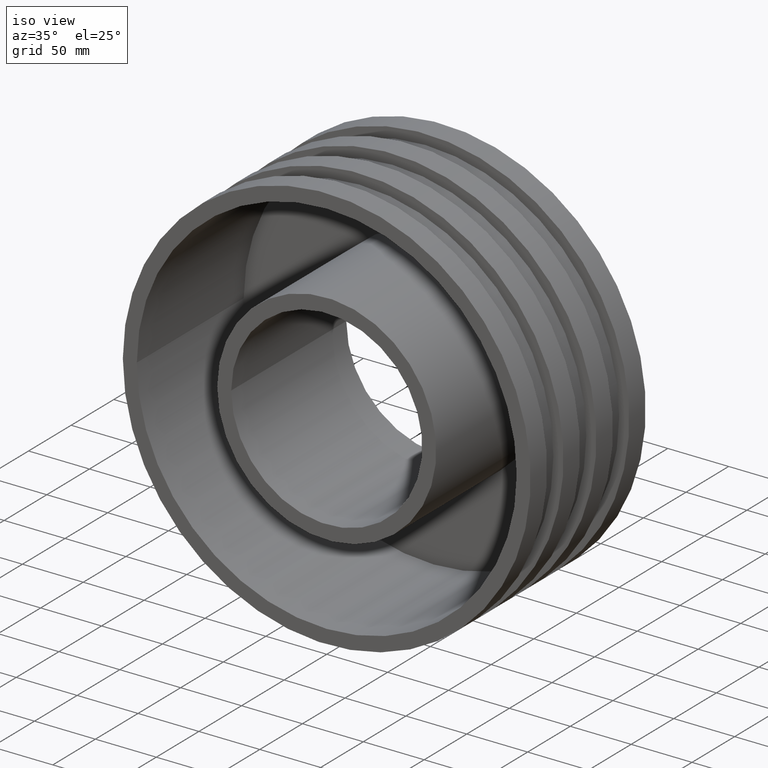
[diagram: clean part render]
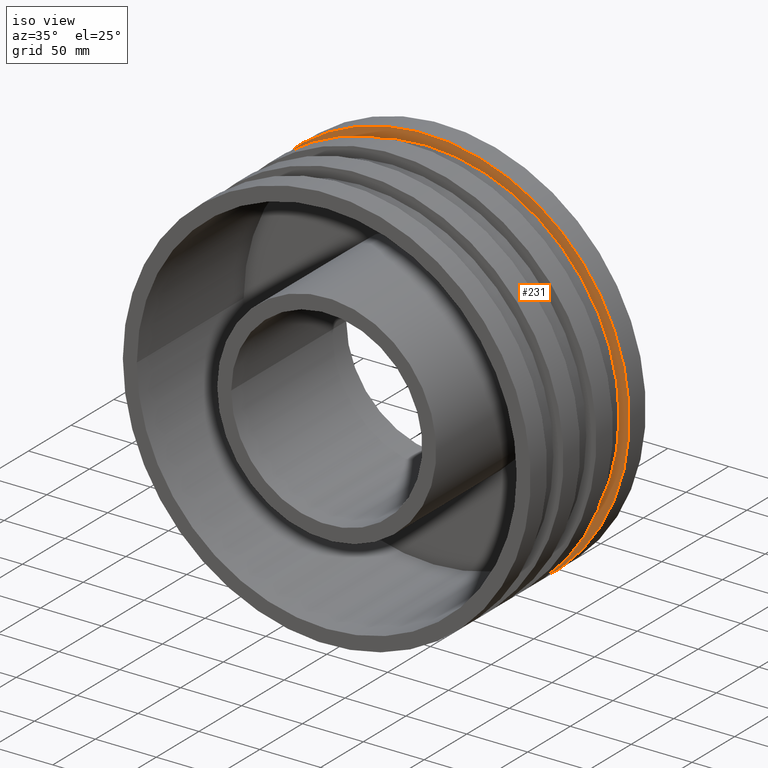
[diagram: same view with one face highlighted and labeled with its STEP entity id]
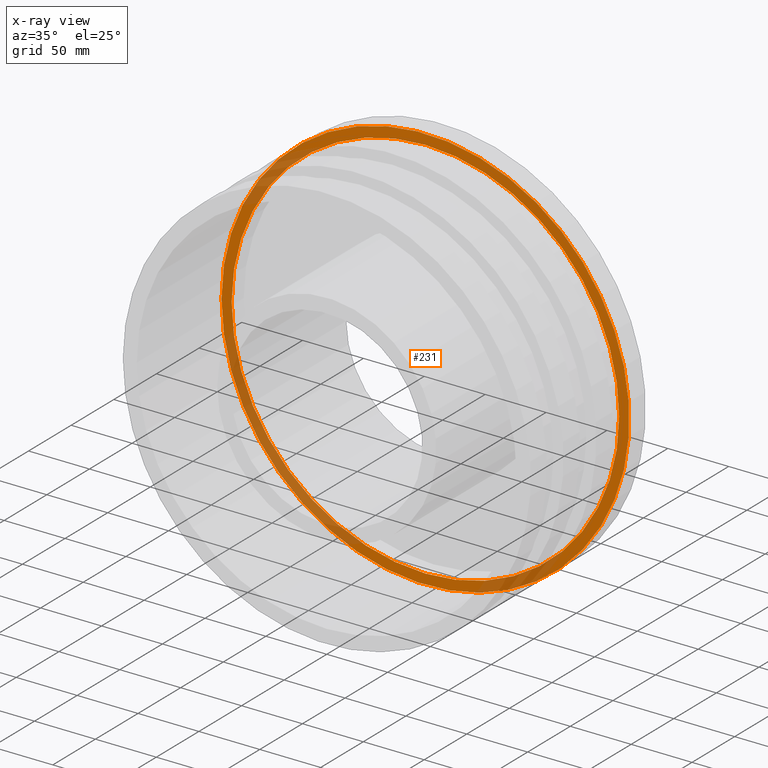
[diagram: x-ray of the same camera — body ghosted, the highlighted face saturated]
A machine part, iso view. The second image highlights one B-rep face of the part: STEP entity #231.
The next image is the same camera in x-ray: the body ghosted, the highlighted face saturated — about 30% of this face is hidden behind the body in this view.
In plain terms, the highlighted planar face has unit normal (0, -1, 0).
Its self-contained STEP definition (entity closure, byte-faithful):
#41=FACE_BOUND('',#98,.T.);
#61=FACE_OUTER_BOUND('',#97,.T.);
#97=EDGE_LOOP('',(#197));
#98=EDGE_LOOP('',(#198));
#121=CIRCLE('',#269,159.125);
#122=CIRCLE('',#271,167.5);
#141=VERTEX_POINT('',#408);
#142=VERTEX_POINT('',#411);
#161=EDGE_CURVE('',#141,#141,#121,.T.);
#162=EDGE_CURVE('',#142,#142,#122,.T.);
#197=ORIENTED_EDGE('',*,*,#162,.F.);
#198=ORIENTED_EDGE('',*,*,#161,.T.);
#213=PLANE('',#270);
#231=ADVANCED_FACE('',(#61,#41),#213,.T.);
#269=AXIS2_PLACEMENT_3D('',#409,#343,#344);
#270=AXIS2_PLACEMENT_3D('',#410,#345,#346);
#271=AXIS2_PLACEMENT_3D('',#412,#347,#348);
#343=DIRECTION('center_axis',(0.,1.,0.));
#344=DIRECTION('ref_axis',(1.,0.,0.));
#345=DIRECTION('center_axis',(0.,-1.,0.));
#346=DIRECTION('ref_axis',(0.,0.,-1.));
#347=DIRECTION('center_axis',(0.,1.,0.));
#348=DIRECTION('ref_axis',(1.,0.,0.));
#408=CARTESIAN_POINT('',(-159.125,115.714285714286,0.));
#409=CARTESIAN_POINT('Origin',(0.,115.714285714286,0.));
#410=CARTESIAN_POINT('Origin',(-167.5,115.714285714286,0.));
#411=CARTESIAN_POINT('',(-167.5,115.714285714286,0.));
#412=CARTESIAN_POINT('Origin',(0.,115.714285714286,0.));